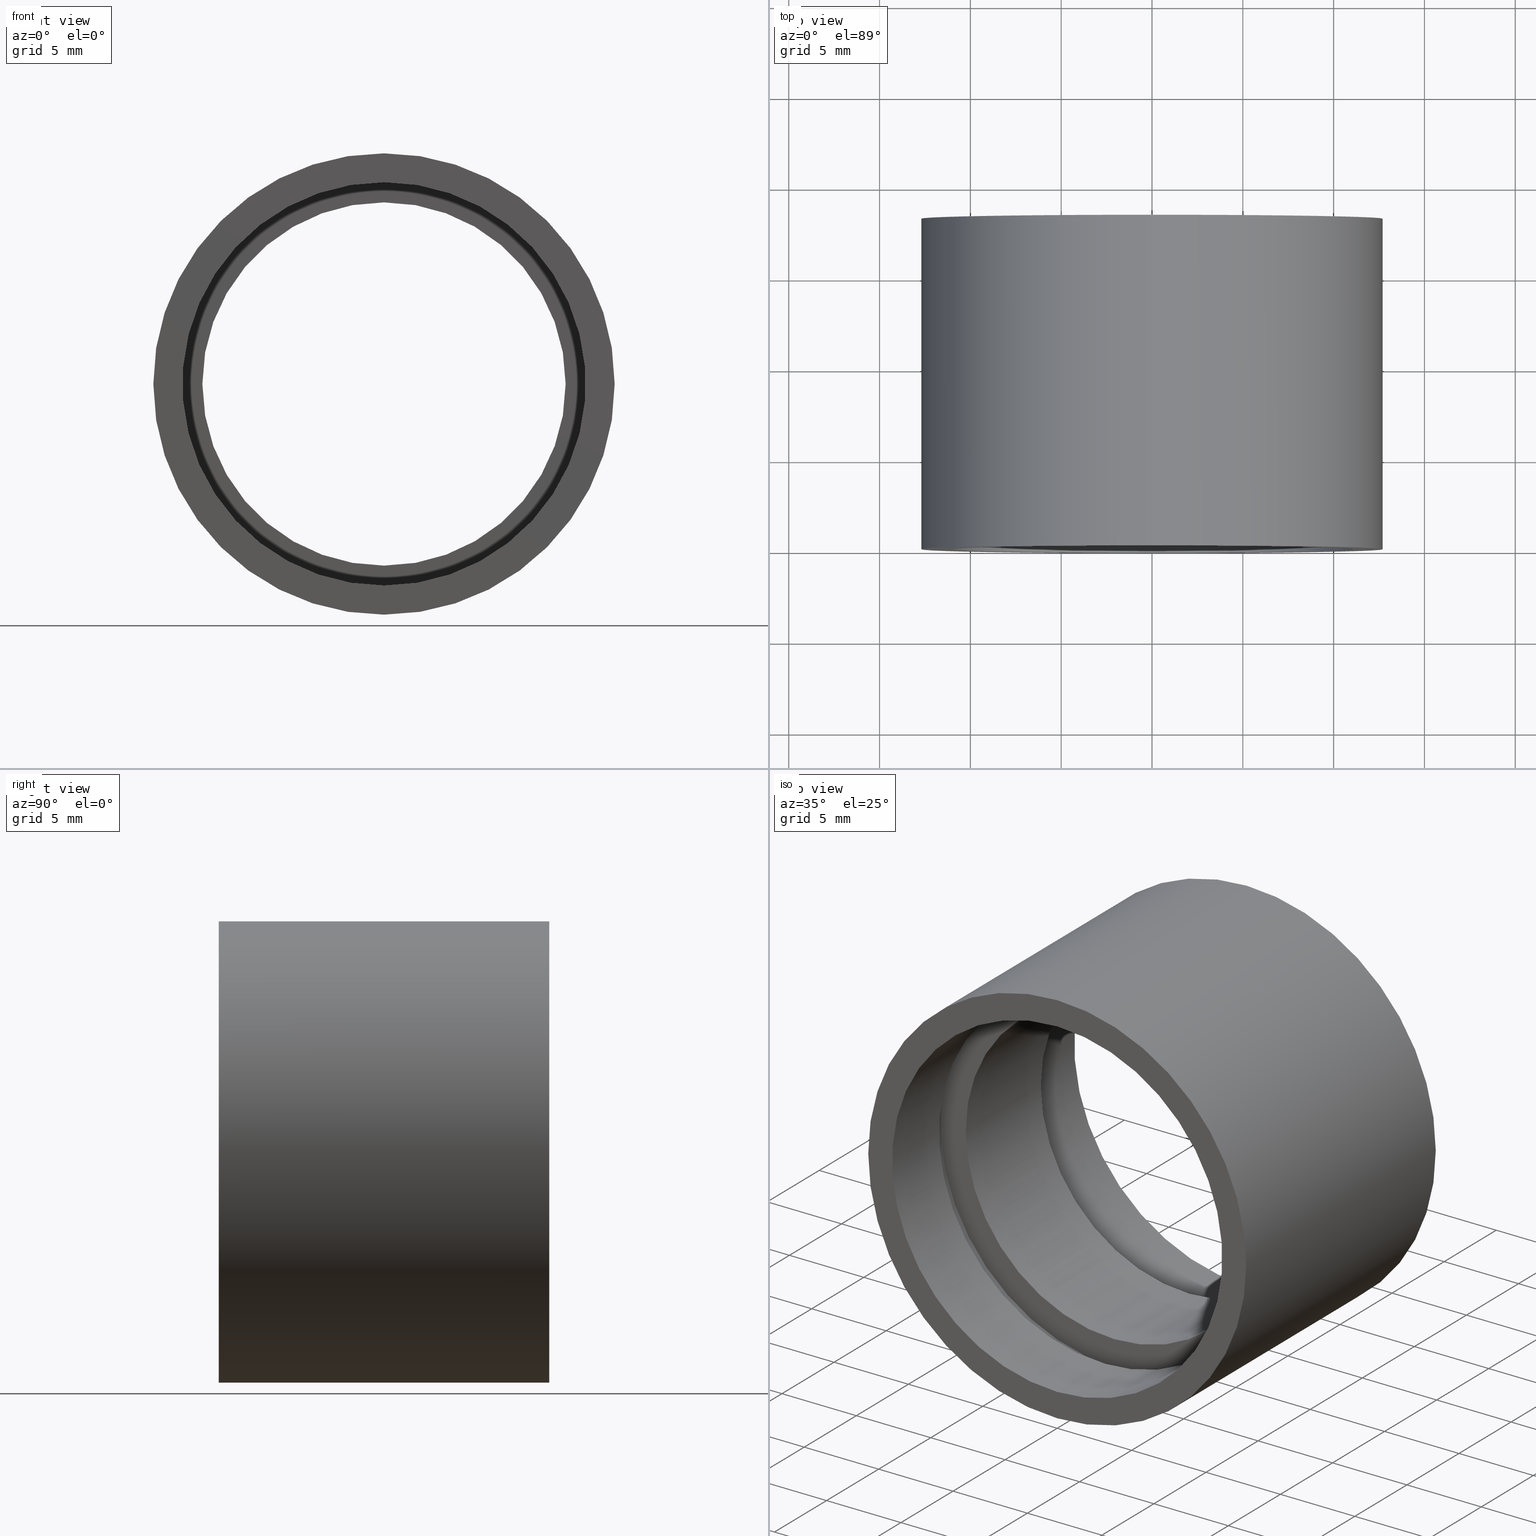
[diagram: canonical four-view strip — front | top / right | iso, engineering-drawing reading convention]
A machine part, canonical four-view strip (front | top / right | iso — engineering-drawing reading convention). The complete STEP part file that produces these views, byte-faithful:
ISO-10303-21;
HEADER;
FILE_DESCRIPTION (( 'STEP AP214' ),
    '1' );
FILE_NAME ('503065.STEP',
    '2019-09-09T06:13:58',
    ( '' ),
    ( '' ),
    'SwSTEP 2.0',
    'SolidWorks 2016',
    '' );
FILE_SCHEMA (( 'AUTOMOTIVE_DESIGN' ));
ENDSEC;

DATA;
#1 = SURFACE_SIDE_STYLE ('',( #604 ) ) ;
#2 = DIRECTION ( 'NONE',  ( -0.0000000000000000000, 1.000000000000000000, -0.0000000000000000000 ) ) ;
#3 = VERTEX_POINT ( 'NONE', #596 ) ;
#4 = MECHANICAL_DESIGN_GEOMETRIC_PRESENTATION_REPRESENTATION (  '', ( #213 ), #61 ) ;
#5 = DIRECTION ( 'NONE',  ( 0.0000000000000000000, 0.0000000000000000000, 1.000000000000000000 ) ) ;
#6 = AXIS2_PLACEMENT_3D ( 'NONE', #29, #513, #231 ) ;
#7 = LINE ( 'NONE', #534, #113 ) ;
#8 = CARTESIAN_POINT ( 'NONE',  ( 0.0000000000000000000, 5.499999999999976900, 11.70000000000001700 ) ) ;
#9 = VERTEX_POINT ( 'NONE', #507 ) ;
#10 = ORIENTED_EDGE ( 'NONE', *, *, #389, .T. ) ;
#11 = DIRECTION ( 'NONE',  ( 0.0000000000000000000, 0.0000000000000000000, 1.000000000000000000 ) ) ;
#12 = CARTESIAN_POINT ( 'NONE',  ( 11.10000000000001900, 4.499999999999983100, 0.0000000000000000000 ) ) ;
#13 = CYLINDRICAL_SURFACE ( 'NONE', #104, 10.00000000000002000 ) ;
#14 = CIRCLE ( 'NONE', #406, 12.70000000000001900 ) ;
#15 = CARTESIAN_POINT ( 'NONE',  ( 0.0000000000000000000, 161.3761669434274500, 0.0000000000000000000 ) ) ;
#16 = COLOUR_RGB ( '',1.000000000000000000, 1.000000000000000000, 1.000000000000000000 ) ;
#17 = AXIS2_PLACEMENT_3D ( 'NONE', #325, #565, #183 ) ;
#18 = CARTESIAN_POINT ( 'NONE',  ( 0.0000000000000000000, 18.19999999999999600, 0.0000000000000000000 ) ) ;
#19 = VERTEX_POINT ( 'NONE', #315 ) ;
#20 = EDGE_CURVE ( 'NONE', #210, #568, #265, .T. ) ;
#21 = CYLINDRICAL_SURFACE ( 'NONE', #326, 11.10000000000002100 ) ;
#22 = SURFACE_STYLE_FILL_AREA ( #530 ) ;
#23 = FILL_AREA_STYLE_COLOUR ( '', #580 ) ;
#24 = VERTEX_POINT ( 'NONE', #361 ) ;
#25 = VERTEX_POINT ( 'NONE', #307 ) ;
#26 = DIRECTION ( 'NONE',  ( -0.0000000000000000000, 1.000000000000000000, -0.0000000000000000000 ) ) ;
#27 = AXIS2_PLACEMENT_3D ( 'NONE', #432, #246, #330 ) ;
#28 = PRESENTATION_STYLE_ASSIGNMENT (( #342 ) ) ;
#29 = CARTESIAN_POINT ( 'NONE',  ( 0.0000000000000000000, -2.775557561562891400E-014, 0.0000000000000000000 ) ) ;
#30 =( NAMED_UNIT ( * ) PLANE_ANGLE_UNIT ( ) SI_UNIT ( $, .RADIAN. ) );
#31 = EDGE_LOOP ( 'NONE', ( #462, #365, #598, #37 ) ) ;
#32 = FILL_AREA_STYLE ('',( #23 ) ) ;
#33 =( NAMED_UNIT ( * ) SI_UNIT ( $, .STERADIAN. ) SOLID_ANGLE_UNIT ( ) );
#34 = PRESENTATION_LAYER_ASSIGNMENT (  '', '', ( #213 ) ) ;
#35 = DIRECTION ( 'NONE',  ( -0.0000000000000000000, 1.000000000000000000, -0.0000000000000000000 ) ) ;
#36 = EDGE_CURVE ( 'NONE', #210, #19, #448, .T. ) ;
#37 = ORIENTED_EDGE ( 'NONE', *, *, #440, .T. ) ;
#38 = DIRECTION ( 'NONE',  ( 0.0000000000000000000, 0.0000000000000000000, 1.000000000000000000 ) ) ;
#39 = DIRECTION ( 'NONE',  ( -0.0000000000000000000, 1.000000000000000000, -0.0000000000000000000 ) ) ;
#40 = ORIENTED_EDGE ( 'NONE', *, *, #228, .F. ) ;
#41 = EDGE_CURVE ( 'NONE', #24, #328, #303, .T. ) ;
#42 = CARTESIAN_POINT ( 'NONE',  ( 0.0000000000000000000, 4.499999999999976000, 0.0000000000000000000 ) ) ;
#43 = CIRCLE ( 'NONE', #248, 10.00000000000002000 ) ;
#44 = ORIENTED_EDGE ( 'NONE', *, *, #124, .T. ) ;
#45 = EDGE_CURVE ( 'NONE', #25, #591, #382, .T. ) ;
#46 = FACE_OUTER_BOUND ( 'NONE', #111, .T. ) ;
#47 = FACE_BOUND ( 'NONE', #64, .T. ) ;
#48 = CARTESIAN_POINT ( 'NONE',  ( 0.0000000000000000000, 161.3761669434274500, 0.0000000000000000000 ) ) ;
#49 = ORIENTED_EDGE ( 'NONE', *, *, #207, .T. ) ;
#50 = VERTEX_POINT ( 'NONE', #125 ) ;
#51 = ORIENTED_EDGE ( 'NONE', *, *, #20, .F. ) ;
#52 = PRODUCT_DEFINITION_FORMATION_WITH_SPECIFIED_SOURCE ( '�κ�', '', #525, .NOT_KNOWN. ) ;
#53 = FILL_AREA_STYLE_COLOUR ( '', #333 ) ;
#54 = SURFACE_STYLE_FILL_AREA ( #273 ) ;
#55 = EDGE_LOOP ( 'NONE', ( #453, #357, #123, #153 ) ) ;
#56 = DIRECTION ( 'NONE',  ( -0.0000000000000000000, 1.000000000000000000, -0.0000000000000000000 ) ) ;
#57 = EDGE_CURVE ( 'NONE', #486, #3, #434, .T. ) ;
#58 = FILL_AREA_STYLE_COLOUR ( '', #430 ) ;
#59 = PRESENTATION_STYLE_ASSIGNMENT (( #161 ) ) ;
#60 = DIRECTION ( 'NONE',  ( -0.0000000000000000000, 1.000000000000000000, -0.0000000000000000000 ) ) ;
#61 =( GEOMETRIC_REPRESENTATION_CONTEXT ( 3 ) GLOBAL_UNCERTAINTY_ASSIGNED_CONTEXT ( ( #412 ) ) GLOBAL_UNIT_ASSIGNED_CONTEXT ( ( #262, #514, #229 ) ) REPRESENTATION_CONTEXT ( 'NONE', 'WORKASPACE' ) );
#62 = CARTESIAN_POINT ( 'NONE',  ( 0.0000000000000000000, 4.499999999999976000, 0.0000000000000000000 ) ) ;
#63 = VERTEX_POINT ( 'NONE', #458 ) ;
#64 = EDGE_LOOP ( 'NONE', ( #425, #344 ) ) ;
#65 = ORIENTED_EDGE ( 'NONE', *, *, #364, .F. ) ;
#66 = MECHANICAL_DESIGN_GEOMETRIC_PRESENTATION_REPRESENTATION (  '', ( #581 ), #460 ) ;
#67 = DIRECTION ( 'NONE',  ( 0.0000000000000000000, 0.0000000000000000000, 1.000000000000000000 ) ) ;
#68 = EDGE_CURVE ( 'NONE', #186, #50, #411, .T. ) ;
#69 = SURFACE_STYLE_FILL_AREA ( #309 ) ;
#70 = FACE_BOUND ( 'NONE', #130, .T. ) ;
#71 = ORIENTED_EDGE ( 'NONE', *, *, #601, .T. ) ;
#72 = DIRECTION ( 'NONE',  ( 0.0000000000000000000, -1.000000000000000000, 0.0000000000000000000 ) ) ;
#73 = DIRECTION ( 'NONE',  ( 0.0000000000000000000, -0.0000000000000000000, -1.000000000000000000 ) ) ;
#74 = PRESENTATION_LAYER_ASSIGNMENT (  '', '', ( #551 ) ) ;
#75 = DIRECTION ( 'NONE',  ( 0.0000000000000000000, 0.0000000000000000000, 1.000000000000000000 ) ) ;
#76 = EDGE_CURVE ( 'NONE', #250, #204, #540, .T. ) ;
#77 = CARTESIAN_POINT ( 'NONE',  ( 0.0000000000000000000, 161.3761669434274500, 11.60000000000003300 ) ) ;
#78 = SURFACE_STYLE_FILL_AREA ( #613 ) ;
#79 = CARTESIAN_POINT ( 'NONE',  ( 0.0000000000000000000, 161.3761669434274500, 0.0000000000000000000 ) ) ;
#80 = ADVANCED_FACE ( 'NONE', ( #160, #556 ), #617, .F. ) ;
#81 = AXIS2_PLACEMENT_3D ( 'NONE', #522, #619, #288 ) ;
#82 = DIRECTION ( 'NONE',  ( 0.0000000000000000000, 0.0000000000000000000, 1.000000000000000000 ) ) ;
#83 = ORIENTED_EDGE ( 'NONE', *, *, #264, .T. ) ;
#84 = ORIENTED_EDGE ( 'NONE', *, *, #484, .F. ) ;
#85 = EDGE_LOOP ( 'NONE', ( #189, #380, #470, #585 ) ) ;
#86 = DIRECTION ( 'NONE',  ( -0.0000000000000000000, 1.000000000000000000, -0.0000000000000000000 ) ) ;
#87 = ADVANCED_FACE ( 'NONE', ( #216 ), #498, .F. ) ;
#88 = CARTESIAN_POINT ( 'NONE',  ( 0.0000000000000000000, 18.19999999999996700, 12.70000000000001900 ) ) ;
#89 = CARTESIAN_POINT ( 'NONE',  ( 11.10000000000002300, -1.590039098016662300E-014, 0.0000000000000000000 ) ) ;
#90 = UNCERTAINTY_MEASURE_WITH_UNIT (LENGTH_MEASURE( 1.000000000000000100E-005 ), #600, 'distance_accuracy_value', 'NONE');
#91 = ADVANCED_FACE ( 'NONE', ( #527, #47 ), #173, .F. ) ;
#92 = CYLINDRICAL_SURFACE ( 'NONE', #570, 11.60000000000003300 ) ;
#93 = CARTESIAN_POINT ( 'NONE',  ( 1.432836755002405500E-015, 13.69999999999999000, -11.70000000000001700 ) ) ;
#94 = STYLED_ITEM ( 'NONE', ( #594 ), #269 ) ;
#95 = DIRECTION ( 'NONE',  ( -0.0000000000000000000, 1.000000000000000000, -0.0000000000000000000 ) ) ;
#96 = ORIENTED_EDGE ( 'NONE', *, *, #402, .F. ) ;
#97 = PRODUCT_DEFINITION_SHAPE ( 'NONE', 'NONE',  #122 ) ;
#98 = FILL_AREA_STYLE_COLOUR ( '', #539 ) ;
#99 = MECHANICAL_DESIGN_GEOMETRIC_PRESENTATION_REPRESENTATION (  '', ( #290 ), #206 ) ;
#100 = DIRECTION ( 'NONE',  ( -0.0000000000000000000, 1.000000000000000000, -0.0000000000000000000 ) ) ;
#101 = FACE_OUTER_BOUND ( 'NONE', #31, .T. ) ;
#102 = CARTESIAN_POINT ( 'NONE',  ( 0.0000000000000000000, -2.775557561562891400E-014, 0.0000000000000000000 ) ) ;
#103 = VERTEX_POINT ( 'NONE', #129 ) ;
#104 = AXIS2_PLACEMENT_3D ( 'NONE', #187, #420, #38 ) ;
#105 =( NAMED_UNIT ( * ) PLANE_ANGLE_UNIT ( ) SI_UNIT ( $, .RADIAN. ) );
#106 = AXIS2_PLACEMENT_3D ( 'NONE', #606, #227, #318 ) ;
#107 = CIRCLE ( 'NONE', #587, 11.10000000000001900 ) ;
#108 = SURFACE_SIDE_STYLE ('',( #194 ) ) ;
#109 = FACE_OUTER_BOUND ( 'NONE', #85, .T. ) ;
#110 = DIRECTION ( 'NONE',  ( 0.0000000000000000000, 0.0000000000000000000, 1.000000000000000000 ) ) ;
#111 = EDGE_LOOP ( 'NONE', ( #521, #168, #49, #614 ) ) ;
#112 = UNCERTAINTY_MEASURE_WITH_UNIT (LENGTH_MEASURE( 1.000000000000000100E-005 ), #388, 'distance_accuracy_value', 'NONE');
#113 = VECTOR ( 'NONE', #2, 1000.000000000000000 ) ;
#114 = VECTOR ( 'NONE', #427, 1000.000000000000000 ) ;
#115 = EDGE_CURVE ( 'NONE', #9, #471, #200, .T. ) ;
#116 =( NAMED_UNIT ( * ) PLANE_ANGLE_UNIT ( ) SI_UNIT ( $, .RADIAN. ) );
#117 = ORIENTED_EDGE ( 'NONE', *, *, #41, .F. ) ;
#118 =( LENGTH_UNIT ( ) NAMED_UNIT ( * ) SI_UNIT ( .MILLI., .METRE. ) );
#119 = ORIENTED_EDGE ( 'NONE', *, *, #331, .T. ) ;
#120 = EDGE_CURVE ( 'NONE', #204, #250, #564, .T. ) ;
#121 = CARTESIAN_POINT ( 'NONE',  ( 0.0000000000000000000, 161.3761669434274500, 0.0000000000000000000 ) ) ;
#122 = PRODUCT_DEFINITION ( 'δ֪', '', #52, #208 ) ;
#123 = ORIENTED_EDGE ( 'NONE', *, *, #524, .T. ) ;
#124 = EDGE_CURVE ( 'NONE', #63, #281, #302, .T. ) ;
#125 = CARTESIAN_POINT ( 'NONE',  ( 1.224646799147355400E-015, 12.69999999999996200, -10.00000000000002000 ) ) ;
#126 = AXIS2_PLACEMENT_3D ( 'NONE', #492, #298, #11 ) ;
#127 = CIRCLE ( 'NONE', #138, 11.70000000000001700 ) ;
#128 = APPLICATION_PROTOCOL_DEFINITION ( 'draft international standard', 'automotive_design', 1998, #616 ) ;
#129 = CARTESIAN_POINT ( 'NONE',  ( 1.432836755002405500E-015, 4.499999999999976000, -11.70000000000001700 ) ) ;
#130 = EDGE_LOOP ( 'NONE', ( #553, #327 ) ) ;
#131 = DIRECTION ( 'NONE',  ( 0.0000000000000000000, 0.0000000000000000000, 1.000000000000000000 ) ) ;
#132 = ADVANCED_FACE ( 'NONE', ( #101 ), #409, .F. ) ;
#133 =( NAMED_UNIT ( * ) SI_UNIT ( $, .STERADIAN. ) SOLID_ANGLE_UNIT ( ) );
#134 = MECHANICAL_DESIGN_GEOMETRIC_PRESENTATION_REPRESENTATION (  '', ( #348 ), #399 ) ;
#135 = CARTESIAN_POINT ( 'NONE',  ( 0.0000000000000000000, 12.69999999999996200, 0.0000000000000000000 ) ) ;
#136 = DIRECTION ( 'NONE',  ( 0.0000000000000000000, 0.0000000000000000000, 1.000000000000000000 ) ) ;
#137 = PRESENTATION_STYLE_ASSIGNMENT (( #209 ) ) ;
#138 = AXIS2_PLACEMENT_3D ( 'NONE', #42, #433, #475 ) ;
#139 = APPLICATION_CONTEXT ( 'automotive_design' ) ;
#140 = EDGE_CURVE ( 'NONE', #141, #345, #247, .T. ) ;
#141 = VERTEX_POINT ( 'NONE', #238 ) ;
#142 = ORIENTED_EDGE ( 'NONE', *, *, #171, .T. ) ;
#143 = CARTESIAN_POINT ( 'NONE',  ( 0.0000000000000000000, 161.3761669434274500, 11.70000000000001700 ) ) ;
#144 = CYLINDRICAL_SURFACE ( 'NONE', #81, 11.70000000000001700 ) ;
#145 = CARTESIAN_POINT ( 'NONE',  ( 0.0000000000000000000, 161.3761669434274500, 0.0000000000000000000 ) ) ;
#146 = AXIS2_PLACEMENT_3D ( 'NONE', #18, #164, #212 ) ;
#147 = DIRECTION ( 'NONE',  ( -0.0000000000000000000, 1.000000000000000000, -0.0000000000000000000 ) ) ;
#148 = EDGE_LOOP ( 'NONE', ( #44, #569 ) ) ;
#149 = EDGE_CURVE ( 'NONE', #591, #25, #438, .T. ) ;
#150 = AXIS2_PLACEMENT_3D ( 'NONE', #283, #240, #429 ) ;
#151 =( LENGTH_UNIT ( ) NAMED_UNIT ( * ) SI_UNIT ( .MILLI., .METRE. ) );
#152 = FILL_AREA_STYLE_COLOUR ( '', #461 ) ;
#153 = ORIENTED_EDGE ( 'NONE', *, *, #276, .F. ) ;
#154 = CARTESIAN_POINT ( 'NONE',  ( 0.0000000000000000000, 161.3761669434274500, 10.00000000000002000 ) ) ;
#155 = CARTESIAN_POINT ( 'NONE',  ( 1.432836755002405500E-015, 12.69999999999996200, -11.70000000000001700 ) ) ;
#156 =( GEOMETRIC_REPRESENTATION_CONTEXT ( 3 ) GLOBAL_UNCERTAINTY_ASSIGNED_CONTEXT ( ( #112 ) ) GLOBAL_UNIT_ASSIGNED_CONTEXT ( ( #388, #280, #335 ) ) REPRESENTATION_CONTEXT ( 'NONE', 'WORKASPACE' ) );
#157 = EDGE_CURVE ( 'NONE', #324, #103, #286, .T. ) ;
#158 = FACE_OUTER_BOUND ( 'NONE', #221, .T. ) ;
#159 = DIRECTION ( 'NONE',  ( 0.0000000000000000000, 0.0000000000000000000, 1.000000000000000000 ) ) ;
#160 = FACE_BOUND ( 'NONE', #403, .T. ) ;
#161 = SURFACE_STYLE_USAGE ( .BOTH. , #454 ) ;
#162 = AXIS2_PLACEMENT_3D ( 'NONE', #379, #147, #572 ) ;
#163 = ORIENTED_EDGE ( 'NONE', *, *, #389, .F. ) ;
#164 = DIRECTION ( 'NONE',  ( -0.0000000000000000000, 1.000000000000000000, -0.0000000000000000000 ) ) ;
#165 = DIRECTION ( 'NONE',  ( 0.0000000000000000000, 0.0000000000000000000, 1.000000000000000000 ) ) ;
#166 = AXIS2_PLACEMENT_3D ( 'NONE', #358, #501, #497 ) ;
#167 = ORIENTED_EDGE ( 'NONE', *, *, #68, .F. ) ;
#168 = ORIENTED_EDGE ( 'NONE', *, *, #124, .F. ) ;
#169 = ORIENTED_EDGE ( 'NONE', *, *, #41, .T. ) ;
#170 = MECHANICAL_DESIGN_GEOMETRIC_PRESENTATION_REPRESENTATION (  '', ( #94 ), #156 ) ;
#171 = EDGE_CURVE ( 'NONE', #103, #141, #396, .T. ) ;
#172 = UNCERTAINTY_MEASURE_WITH_UNIT (LENGTH_MEASURE( 1.000000000000000100E-005 ), #320, 'distance_accuracy_value', 'NONE');
#173 = PLANE ( 'NONE',  #451 ) ;
#174 = ORIENTED_EDGE ( 'NONE', *, *, #276, .T. ) ;
#175 =( LENGTH_UNIT ( ) NAMED_UNIT ( * ) SI_UNIT ( .MILLI., .METRE. ) );
#176 =( GEOMETRIC_REPRESENTATION_CONTEXT ( 3 ) GLOBAL_UNCERTAINTY_ASSIGNED_CONTEXT ( ( #623 ) ) GLOBAL_UNIT_ASSIGNED_CONTEXT ( ( #541, #258, #593 ) ) REPRESENTATION_CONTEXT ( 'NONE', 'WORKASPACE' ) );
#177 = DIRECTION ( 'NONE',  ( 0.0000000000000000000, 0.0000000000000000000, 1.000000000000000000 ) ) ;
#178 = ADVANCED_FACE ( 'NONE', ( #243 ), #144, .F. ) ;
#179 = DIRECTION ( 'NONE',  ( -0.0000000000000000000, 1.000000000000000000, -0.0000000000000000000 ) ) ;
#180 = LINE ( 'NONE', #447, #192 ) ;
#181 = PRESENTATION_LAYER_ASSIGNMENT (  '', '', ( #290 ) ) ;
#182 = PRESENTATION_STYLE_ASSIGNMENT (( #277 ) ) ;
#183 = DIRECTION ( 'NONE',  ( 0.0000000000000000000, 0.0000000000000000000, 1.000000000000000000 ) ) ;
#184 = SHAPE_DEFINITION_REPRESENTATION ( #97, #603 ) ;
#185 = ADVANCED_FACE ( 'NONE', ( #512 ), #387, .T. ) ;
#186 = VERTEX_POINT ( 'NONE', #480 ) ;
#187 = CARTESIAN_POINT ( 'NONE',  ( 0.0000000000000000000, 161.3761669434274500, 0.0000000000000000000 ) ) ;
#188 = CARTESIAN_POINT ( 'NONE',  ( 11.60000000000003300, 13.69999999999998000, 0.0000000000000000000 ) ) ;
#189 = ORIENTED_EDGE ( 'NONE', *, *, #149, .F. ) ;
#190 = EDGE_LOOP ( 'NONE', ( #313, #236 ) ) ;
#191 = AXIS2_PLACEMENT_3D ( 'NONE', #443, #255, #291 ) ;
#192 = VECTOR ( 'NONE', #354, 1000.000000000000000 ) ;
#193 = DIRECTION ( 'NONE',  ( -0.0000000000000000000, 1.000000000000000000, -0.0000000000000000000 ) ) ;
#194 = SURFACE_STYLE_FILL_AREA ( #300 ) ;
#195 = FACE_OUTER_BOUND ( 'NONE', #390, .T. ) ;
#196 = EDGE_CURVE ( 'NONE', #103, #324, #127, .T. ) ;
#197 = ORIENTED_EDGE ( 'NONE', *, *, #319, .T. ) ;
#198 = EDGE_CURVE ( 'NONE', #324, #345, #308, .T. ) ;
#199 = DIRECTION ( 'NONE',  ( -0.0000000000000000000, 1.000000000000000000, -0.0000000000000000000 ) ) ;
#200 = CIRCLE ( 'NONE', #493, 10.00000000000002000 ) ;
#201 = DIRECTION ( 'NONE',  ( -0.0000000000000000000, 1.000000000000000000, -0.0000000000000000000 ) ) ;
#202 = PRODUCT_RELATED_PRODUCT_CATEGORY ( 'part', '', ( #525 ) ) ;
#203 =( LENGTH_UNIT ( ) NAMED_UNIT ( * ) SI_UNIT ( .MILLI., .METRE. ) );
#204 = VERTEX_POINT ( 'NONE', #93 ) ;
#205 = ORIENTED_EDGE ( 'NONE', *, *, #400, .T. ) ;
#206 =( GEOMETRIC_REPRESENTATION_CONTEXT ( 3 ) GLOBAL_UNCERTAINTY_ASSIGNED_CONTEXT ( ( #268 ) ) GLOBAL_UNIT_ASSIGNED_CONTEXT ( ( #203, #105, #437 ) ) REPRESENTATION_CONTEXT ( 'NONE', 'WORKASPACE' ) );
#207 = EDGE_CURVE ( 'NONE', #63, #250, #257, .T. ) ;
#208 = PRODUCT_DEFINITION_CONTEXT ( 'detailed design', #616, 'design' ) ;
#209 = SURFACE_STYLE_USAGE ( .BOTH. , #450 ) ;
#210 = VERTEX_POINT ( 'NONE', #383 ) ;
#211 = DIRECTION ( 'NONE',  ( 0.0000000000000000000, -0.0000000000000000000, -1.000000000000000000 ) ) ;
#212 = DIRECTION ( 'NONE',  ( 0.0000000000000000000, 0.0000000000000000000, 1.000000000000000000 ) ) ;
#213 = STYLED_ITEM ( 'NONE', ( #418 ), #615 ) ;
#214 = FACE_BOUND ( 'NONE', #393, .T. ) ;
#215 = DIRECTION ( 'NONE',  ( -0.0000000000000000000, 1.000000000000000000, -0.0000000000000000000 ) ) ;
#216 = FACE_OUTER_BOUND ( 'NONE', #535, .T. ) ;
#217 = CARTESIAN_POINT ( 'NONE',  ( 0.0000000000000000000, 161.3761669434274500, 0.0000000000000000000 ) ) ;
#218 = EDGE_CURVE ( 'NONE', #529, #577, #349, .T. ) ;
#219 = ORIENTED_EDGE ( 'NONE', *, *, #363, .F. ) ;
#220 = ORIENTED_EDGE ( 'NONE', *, *, #198, .F. ) ;
#221 = EDGE_LOOP ( 'NONE', ( #495, #397, #506, #163 ) ) ;
#222 =( NAMED_UNIT ( * ) SI_UNIT ( $, .STERADIAN. ) SOLID_ANGLE_UNIT ( ) );
#223 =( GEOMETRIC_REPRESENTATION_CONTEXT ( 3 ) GLOBAL_UNCERTAINTY_ASSIGNED_CONTEXT ( ( #293 ) ) GLOBAL_UNIT_ASSIGNED_CONTEXT ( ( #175, #239, #133 ) ) REPRESENTATION_CONTEXT ( 'NONE', 'WORKASPACE' ) );
#224 = FACE_OUTER_BOUND ( 'NONE', #442, .T. ) ;
#225 = ORIENTED_EDGE ( 'NONE', *, *, #140, .F. ) ;
#226 = PRESENTATION_LAYER_ASSIGNMENT (  '', '', ( #94 ) ) ;
#227 = DIRECTION ( 'NONE',  ( -0.0000000000000000000, 1.000000000000000000, -0.0000000000000000000 ) ) ;
#228 = EDGE_CURVE ( 'NONE', #591, #328, #355, .T. ) ;
#229 =( NAMED_UNIT ( * ) SI_UNIT ( $, .STERADIAN. ) SOLID_ANGLE_UNIT ( ) );
#230 = VECTOR ( 'NONE', #260, 1000.000000000000000 ) ;
#231 = DIRECTION ( 'NONE',  ( 0.0000000000000000000, 0.0000000000000000000, 1.000000000000000000 ) ) ;
#232 = ADVANCED_FACE ( 'NONE', ( #195, #431 ), #385, .F. ) ;
#233 = COLOUR_RGB ( '',1.000000000000000000, 1.000000000000000000, 1.000000000000000000 ) ;
#234 = CARTESIAN_POINT ( 'NONE',  ( 0.0000000000000000000, 161.3761669434274500, 0.0000000000000000000 ) ) ;
#235 = DIRECTION ( 'NONE',  ( -0.0000000000000000000, 1.000000000000000000, -0.0000000000000000000 ) ) ;
#236 = ORIENTED_EDGE ( 'NONE', *, *, #196, .T. ) ;
#237 = PRESENTATION_LAYER_ASSIGNMENT (  '', '', ( #562 ) ) ;
#238 = CARTESIAN_POINT ( 'NONE',  ( 1.432836755002405500E-015, 5.499999999999976900, -11.70000000000001700 ) ) ;
#239 =( NAMED_UNIT ( * ) PLANE_ANGLE_UNIT ( ) SI_UNIT ( $, .RADIAN. ) );
#240 = DIRECTION ( 'NONE',  ( -0.0000000000000000000, 1.000000000000000000, -0.0000000000000000000 ) ) ;
#241 = AXIS2_PLACEMENT_3D ( 'NONE', #599, #26, #405 ) ;
#242 = FACE_OUTER_BOUND ( 'NONE', #311, .T. ) ;
#243 = FACE_OUTER_BOUND ( 'NONE', #343, .T. ) ;
#244 = VECTOR ( 'NONE', #407, 1000.000000000000000 ) ;
#245 = DIRECTION ( 'NONE',  ( -0.0000000000000000000, 1.000000000000000000, 0.0000000000000000000 ) ) ;
#246 = DIRECTION ( 'NONE',  ( -0.0000000000000000000, 1.000000000000000000, -0.0000000000000000000 ) ) ;
#247 = CIRCLE ( 'NONE', #611, 11.70000000000001700 ) ;
#248 = AXIS2_PLACEMENT_3D ( 'NONE', #489, #251, #110 ) ;
#249 = CARTESIAN_POINT ( 'NONE',  ( 0.0000000000000000000, 4.499999999999976000, 11.70000000000001700 ) ) ;
#250 = VERTEX_POINT ( 'NONE', #575 ) ;
#251 = DIRECTION ( 'NONE',  ( -0.0000000000000000000, 1.000000000000000000, -0.0000000000000000000 ) ) ;
#252 = DIRECTION ( 'NONE',  ( -0.0000000000000000000, 1.000000000000000000, -0.0000000000000000000 ) ) ;
#253 = UNCERTAINTY_MEASURE_WITH_UNIT (LENGTH_MEASURE( 1.000000000000000100E-005 ), #118, 'distance_accuracy_value', 'NONE');
#254 = LINE ( 'NONE', #77, #445 ) ;
#255 = DIRECTION ( 'NONE',  ( -0.0000000000000000000, 1.000000000000000000, -0.0000000000000000000 ) ) ;
#256 = AXIS2_PLACEMENT_3D ( 'NONE', #12, #351, #211 ) ;
#257 = LINE ( 'NONE', #526, #114 ) ;
#258 =( NAMED_UNIT ( * ) PLANE_ANGLE_UNIT ( ) SI_UNIT ( $, .RADIAN. ) );
#259 = PRESENTATION_LAYER_ASSIGNMENT (  '', '', ( #581 ) ) ;
#260 = DIRECTION ( 'NONE',  ( -0.0000000000000000000, 1.000000000000000000, -0.0000000000000000000 ) ) ;
#261 = AXIS2_PLACEMENT_3D ( 'NONE', #301, #398, #165 ) ;
#262 =( LENGTH_UNIT ( ) NAMED_UNIT ( * ) SI_UNIT ( .MILLI., .METRE. ) );
#263 = SURFACE_STYLE_FILL_AREA ( #543 ) ;
#264 = EDGE_CURVE ( 'NONE', #486, #577, #482, .T. ) ;
#265 = LINE ( 'NONE', #266, #244 ) ;
#266 = CARTESIAN_POINT ( 'NONE',  ( 1.359357947053564500E-015, 161.3761669434274500, -11.10000000000002100 ) ) ;
#267 = ORIENTED_EDGE ( 'NONE', *, *, #319, .F. ) ;
#268 = UNCERTAINTY_MEASURE_WITH_UNIT (LENGTH_MEASURE( 1.000000000000000100E-005 ), #203, 'distance_accuracy_value', 'NONE');
#269 = ADVANCED_FACE ( 'NONE', ( #109 ), #92, .F. ) ;
#270 = SURFACE_SIDE_STYLE ('',( #54 ) ) ;
#271 = EDGE_LOOP ( 'NONE', ( #51, #552, #10, #441 ) ) ;
#272 = CARTESIAN_POINT ( 'NONE',  ( 1.420590287010933900E-015, 13.69999999999999000, -11.60000000000003300 ) ) ;
#273 = FILL_AREA_STYLE ('',( #369 ) ) ;
#274 = DIRECTION ( 'NONE',  ( 0.0000000000000000000, -1.000000000000000000, 0.0000000000000000000 ) ) ;
#275 = DIRECTION ( 'NONE',  ( -0.0000000000000000000, 1.000000000000000000, -0.0000000000000000000 ) ) ;
#276 = EDGE_CURVE ( 'NONE', #9, #186, #446, .T. ) ;
#277 = SURFACE_STYLE_USAGE ( .BOTH. , #270 ) ;
#278 = CYLINDRICAL_SURFACE ( 'NONE', #191, 11.70000000000001700 ) ;
#279 = ADVANCED_FACE ( 'NONE', ( #386 ), #518, .F. ) ;
#280 =( NAMED_UNIT ( * ) PLANE_ANGLE_UNIT ( ) SI_UNIT ( $, .RADIAN. ) );
#281 = VERTEX_POINT ( 'NONE', #155 ) ;
#282 = ORIENTED_EDGE ( 'NONE', *, *, #440, .F. ) ;
#283 = CARTESIAN_POINT ( 'NONE',  ( 0.0000000000000000000, 161.3761669434274500, 0.0000000000000000000 ) ) ;
#284 = LINE ( 'NONE', #548, #230 ) ;
#285 = STYLED_ITEM ( 'NONE', ( #367 ), #603 ) ;
#286 = CIRCLE ( 'NONE', #503, 11.70000000000001700 ) ;
#287 = CARTESIAN_POINT ( 'NONE',  ( 0.0000000000000000000, 161.3761669434274500, 12.70000000000001900 ) ) ;
#288 = DIRECTION ( 'NONE',  ( 0.0000000000000000000, 0.0000000000000000000, 1.000000000000000000 ) ) ;
#289 = ORIENTED_EDGE ( 'NONE', *, *, #36, .T. ) ;
#290 = STYLED_ITEM ( 'NONE', ( #555 ), #279 ) ;
#291 = DIRECTION ( 'NONE',  ( 0.0000000000000000000, 0.0000000000000000000, 1.000000000000000000 ) ) ;
#292 = DIRECTION ( 'NONE',  ( 0.0000000000000000000, 0.0000000000000000000, 1.000000000000000000 ) ) ;
#293 = UNCERTAINTY_MEASURE_WITH_UNIT (LENGTH_MEASURE( 1.000000000000000100E-005 ), #175, 'distance_accuracy_value', 'NONE');
#294 = MECHANICAL_DESIGN_GEOMETRIC_PRESENTATION_REPRESENTATION (  '', ( #562 ), #176 ) ;
#295 = DIRECTION ( 'NONE',  ( -0.0000000000000000000, 1.000000000000000000, -0.0000000000000000000 ) ) ;
#296 = ORIENTED_EDGE ( 'NONE', *, *, #524, .F. ) ;
#297 = ORIENTED_EDGE ( 'NONE', *, *, #57, .T. ) ;
#298 = DIRECTION ( 'NONE',  ( -0.0000000000000000000, 1.000000000000000000, -0.0000000000000000000 ) ) ;
#299 = AXIS2_PLACEMENT_3D ( 'NONE', #422, #235, #473 ) ;
#300 = FILL_AREA_STYLE ('',( #98 ) ) ;
#301 = CARTESIAN_POINT ( 'NONE',  ( 11.70000000000001700, 5.499999999999984000, 0.0000000000000000000 ) ) ;
#302 = CIRCLE ( 'NONE', #375, 11.70000000000001700 ) ;
#303 = CIRCLE ( 'NONE', #310, 11.60000000000003200 ) ;
#304 = DIRECTION ( 'NONE',  ( 0.0000000000000000000, 0.0000000000000000000, 1.000000000000000000 ) ) ;
#305 =( GEOMETRIC_REPRESENTATION_CONTEXT ( 3 ) GLOBAL_UNCERTAINTY_ASSIGNED_CONTEXT ( ( #90 ) ) GLOBAL_UNIT_ASSIGNED_CONTEXT ( ( #600, #378, #222 ) ) REPRESENTATION_CONTEXT ( 'NONE', 'WORKASPACE' ) );
#306 = EDGE_CURVE ( 'NONE', #494, #568, #624, .T. ) ;
#307 = CARTESIAN_POINT ( 'NONE',  ( 0.0000000000000000000, 13.69999999999999000, 11.60000000000003300 ) ) ;
#308 = LINE ( 'NONE', #143, #370 ) ;
#309 = FILL_AREA_STYLE ('',( #58 ) ) ;
#310 = AXIS2_PLACEMENT_3D ( 'NONE', #550, #546, #67 ) ;
#311 = EDGE_LOOP ( 'NONE', ( #366, #142, #542, #220 ) ) ;
#312 = PRODUCT_CONTEXT ( 'NONE', #139, 'mechanical' ) ;
#313 = ORIENTED_EDGE ( 'NONE', *, *, #157, .T. ) ;
#314 = ORIENTED_EDGE ( 'NONE', *, *, #57, .F. ) ;
#315 = CARTESIAN_POINT ( 'NONE',  ( 0.0000000000000000000, -2.775557561562891400E-014, 11.10000000000002300 ) ) ;
#316 = DIRECTION ( 'NONE',  ( -0.0000000000000000000, 1.000000000000000000, -0.0000000000000000000 ) ) ;
#317 = ORIENTED_EDGE ( 'NONE', *, *, #76, .F. ) ;
#318 = DIRECTION ( 'NONE',  ( 0.0000000000000000000, 0.0000000000000000000, 1.000000000000000000 ) ) ;
#319 = EDGE_CURVE ( 'NONE', #577, #529, #510, .T. ) ;
#320 =( LENGTH_UNIT ( ) NAMED_UNIT ( * ) SI_UNIT ( .MILLI., .METRE. ) );
#321 = ADVANCED_FACE ( 'NONE', ( #242 ), #278, .F. ) ;
#322 = DIRECTION ( 'NONE',  ( -0.0000000000000000000, 1.000000000000000000, -0.0000000000000000000 ) ) ;
#323 = CARTESIAN_POINT ( 'NONE',  ( 0.0000000000000000000, 5.499999999999976900, 0.0000000000000000000 ) ) ;
#324 = VERTEX_POINT ( 'NONE', #249 ) ;
#325 = CARTESIAN_POINT ( 'NONE',  ( 0.0000000000000000000, 12.69999999999996200, 0.0000000000000000000 ) ) ;
#326 = AXIS2_PLACEMENT_3D ( 'NONE', #15, #452, #159 ) ;
#327 = ORIENTED_EDGE ( 'NONE', *, *, #346, .T. ) ;
#328 = VERTEX_POINT ( 'NONE', #444 ) ;
#329 = DIRECTION ( 'NONE',  ( 0.0000000000000000000, 0.0000000000000000000, 1.000000000000000000 ) ) ;
#330 = DIRECTION ( 'NONE',  ( 0.0000000000000000000, 0.0000000000000000000, 1.000000000000000000 ) ) ;
#331 = EDGE_CURVE ( 'NONE', #3, #529, #7, .T. ) ;
#332 = CARTESIAN_POINT ( 'NONE',  ( 0.0000000000000000000, 5.499999999999976900, 0.0000000000000000000 ) ) ;
#333 = COLOUR_RGB ( '',1.000000000000000000, 1.000000000000000000, 1.000000000000000000 ) ;
#334 = MANIFOLD_SOLID_BREP ( '��ת1', #567 ) ;
#335 =( NAMED_UNIT ( * ) SI_UNIT ( $, .STERADIAN. ) SOLID_ANGLE_UNIT ( ) );
#336 = ORIENTED_EDGE ( 'NONE', *, *, #264, .F. ) ;
#337 = SURFACE_STYLE_USAGE ( .BOTH. , #1 ) ;
#338 = AXIS2_PLACEMENT_3D ( 'NONE', #588, #252, #586 ) ;
#339 = COLOUR_RGB ( '',1.000000000000000000, 1.000000000000000000, 1.000000000000000000 ) ;
#340 =( NAMED_UNIT ( * ) SI_UNIT ( $, .STERADIAN. ) SOLID_ANGLE_UNIT ( ) );
#341 = EDGE_CURVE ( 'NONE', #19, #210, #368, .T. ) ;
#342 = SURFACE_STYLE_USAGE ( .BOTH. , #439 ) ;
#343 = EDGE_LOOP ( 'NONE', ( #84, #205, #597, #499 ) ) ;
#344 = ORIENTED_EDGE ( 'NONE', *, *, #149, .T. ) ;
#345 = VERTEX_POINT ( 'NONE', #8 ) ;
#346 = EDGE_CURVE ( 'NONE', #471, #9, #43, .T. ) ;
#347 = FACE_OUTER_BOUND ( 'NONE', #148, .T. ) ;
#348 = STYLED_ITEM ( 'NONE', ( #59 ), #414 ) ;
#349 = CIRCLE ( 'NONE', #27, 12.70000000000001900 ) ;
#350 = ORIENTED_EDGE ( 'NONE', *, *, #120, .F. ) ;
#351 = DIRECTION ( 'NONE',  ( 0.0000000000000000000, -1.000000000000000000, 0.0000000000000000000 ) ) ;
#352 = UNCERTAINTY_MEASURE_WITH_UNIT (LENGTH_MEASURE( 1.000000000000000100E-005 ), #151, 'distance_accuracy_value', 'NONE');
#353 = CARTESIAN_POINT ( 'NONE',  ( 1.555301434917140800E-015, 18.19999999999996700, -12.70000000000001900 ) ) ;
#354 = DIRECTION ( 'NONE',  ( -0.0000000000000000000, 1.000000000000000000, -0.0000000000000000000 ) ) ;
#355 = LINE ( 'NONE', #478, #419 ) ;
#356 = ORIENTED_EDGE ( 'NONE', *, *, #45, .F. ) ;
#357 = ORIENTED_EDGE ( 'NONE', *, *, #472, .T. ) ;
#358 = CARTESIAN_POINT ( 'NONE',  ( 0.0000000000000000000, 5.499999999999976900, 0.0000000000000000000 ) ) ;
#359 = AXIS2_PLACEMENT_3D ( 'NONE', #234, #86, #131 ) ;
#360 = DIRECTION ( 'NONE',  ( -0.0000000000000000000, 1.000000000000000000, -0.0000000000000000000 ) ) ;
#361 = CARTESIAN_POINT ( 'NONE',  ( 0.0000000000000000000, 18.19999999999999600, 11.60000000000003200 ) ) ;
#362 = VECTOR ( 'NONE', #435, 1000.000000000000000 ) ;
#363 = EDGE_CURVE ( 'NONE', #3, #486, #14, .T. ) ;
#364 = EDGE_CURVE ( 'NONE', #328, #24, #476, .T. ) ;
#365 = ORIENTED_EDGE ( 'NONE', *, *, #157, .F. ) ;
#366 = ORIENTED_EDGE ( 'NONE', *, *, #196, .F. ) ;
#367 = PRESENTATION_STYLE_ASSIGNMENT (( #519 ) ) ;
#368 = CIRCLE ( 'NONE', #338, 11.10000000000002300 ) ;
#369 = FILL_AREA_STYLE_COLOUR ( '', #16 ) ;
#370 = VECTOR ( 'NONE', #39, 1000.000000000000000 ) ;
#371 = ADVANCED_FACE ( 'NONE', ( #607, #70 ), #391, .F. ) ;
#372 = CARTESIAN_POINT ( 'NONE',  ( 0.0000000000000000000, 0.0000000000000000000, 0.0000000000000000000 ) ) ;
#373 = CARTESIAN_POINT ( 'NONE',  ( 11.60000000000003200, 18.19999999999998200, 0.0000000000000000000 ) ) ;
#374 = ADVANCED_FACE ( 'NONE', ( #158 ), #401, .F. ) ;
#375 = AXIS2_PLACEMENT_3D ( 'NONE', #559, #557, #75 ) ;
#376 = SURFACE_SIDE_STYLE ('',( #508 ) ) ;
#377 = FACE_BOUND ( 'NONE', #558, .T. ) ;
#378 =( NAMED_UNIT ( * ) PLANE_ANGLE_UNIT ( ) SI_UNIT ( $, .RADIAN. ) );
#379 = CARTESIAN_POINT ( 'NONE',  ( 0.0000000000000000000, 13.69999999999999000, 0.0000000000000000000 ) ) ;
#380 = ORIENTED_EDGE ( 'NONE', *, *, #228, .T. ) ;
#381 =( GEOMETRIC_REPRESENTATION_CONTEXT ( 3 ) GLOBAL_UNCERTAINTY_ASSIGNED_CONTEXT ( ( #352 ) ) GLOBAL_UNIT_ASSIGNED_CONTEXT ( ( #151, #487, #340 ) ) REPRESENTATION_CONTEXT ( 'NONE', 'WORKASPACE' ) );
#382 = CIRCLE ( 'NONE', #394, 11.60000000000003300 ) ;
#383 = CARTESIAN_POINT ( 'NONE',  ( 1.359357947053564900E-015, -2.775557561562891400E-014, -11.10000000000002300 ) ) ;
#384 = AXIS2_PLACEMENT_3D ( 'NONE', #372, #329, #571 ) ;
#385 = PLANE ( 'NONE',  #554 ) ;
#386 = FACE_OUTER_BOUND ( 'NONE', #55, .T. ) ;
#387 = CYLINDRICAL_SURFACE ( 'NONE', #150, 12.70000000000001900 ) ;
#388 =( LENGTH_UNIT ( ) NAMED_UNIT ( * ) SI_UNIT ( .MILLI., .METRE. ) );
#389 = EDGE_CURVE ( 'NONE', #19, #494, #180, .T. ) ;
#390 = EDGE_LOOP ( 'NONE', ( #314, #219 ) ) ;
#391 = PLANE ( 'NONE',  #261 ) ;
#392 = FACE_OUTER_BOUND ( 'NONE', #271, .T. ) ;
#393 = EDGE_LOOP ( 'NONE', ( #167, #296 ) ) ;
#394 = AXIS2_PLACEMENT_3D ( 'NONE', #517, #316, #177 ) ;
#395 = PLANE ( 'NONE',  #256 ) ;
#396 = LINE ( 'NONE', #469, #608 ) ;
#397 = ORIENTED_EDGE ( 'NONE', *, *, #20, .T. ) ;
#398 = DIRECTION ( 'NONE',  ( -0.0000000000000000000, 1.000000000000000000, 0.0000000000000000000 ) ) ;
#399 =( GEOMETRIC_REPRESENTATION_CONTEXT ( 3 ) GLOBAL_UNCERTAINTY_ASSIGNED_CONTEXT ( ( #253 ) ) GLOBAL_UNIT_ASSIGNED_CONTEXT ( ( #118, #116, #496 ) ) REPRESENTATION_CONTEXT ( 'NONE', 'WORKASPACE' ) );
#400 = EDGE_CURVE ( 'NONE', #281, #204, #532, .T. ) ;
#401 = CYLINDRICAL_SURFACE ( 'NONE', #436, 11.10000000000002100 ) ;
#402 = EDGE_CURVE ( 'NONE', #568, #494, #107, .T. ) ;
#403 = EDGE_LOOP ( 'NONE', ( #117, #65 ) ) ;
#404 = ORIENTED_EDGE ( 'NONE', *, *, #218, .T. ) ;
#405 = DIRECTION ( 'NONE',  ( 0.0000000000000000000, 0.0000000000000000000, 1.000000000000000000 ) ) ;
#406 = AXIS2_PLACEMENT_3D ( 'NONE', #102, #295, #5 ) ;
#407 = DIRECTION ( 'NONE',  ( -0.0000000000000000000, 1.000000000000000000, -0.0000000000000000000 ) ) ;
#408 = CYLINDRICAL_SURFACE ( 'NONE', #500, 12.70000000000001900 ) ;
#409 = CYLINDRICAL_SURFACE ( 'NONE', #589, 11.70000000000001700 ) ;
#410 = CARTESIAN_POINT ( 'NONE',  ( 0.0000000000000000000, 13.69999999999999000, 0.0000000000000000000 ) ) ;
#411 = CIRCLE ( 'NONE', #621, 10.00000000000002000 ) ;
#412 = UNCERTAINTY_MEASURE_WITH_UNIT (LENGTH_MEASURE( 1.000000000000000100E-005 ), #262, 'distance_accuracy_value', 'NONE');
#413 = SURFACE_STYLE_USAGE ( .BOTH. , #463 ) ;
#414 = ADVANCED_FACE ( 'NONE', ( #392 ), #21, .F. ) ;
#415 = AXIS2_PLACEMENT_3D ( 'NONE', #373, #72, #515 ) ;
#416 = CARTESIAN_POINT ( 'NONE',  ( 0.0000000000000000000, 4.499999999999976000, 11.10000000000001900 ) ) ;
#417 = DIRECTION ( 'NONE',  ( 0.0000000000000000000, 0.0000000000000000000, 1.000000000000000000 ) ) ;
#418 = PRESENTATION_STYLE_ASSIGNMENT (( #413 ) ) ;
#419 = VECTOR ( 'NONE', #193, 1000.000000000000000 ) ;
#420 = DIRECTION ( 'NONE',  ( -0.0000000000000000000, 1.000000000000000000, -0.0000000000000000000 ) ) ;
#421 = AXIS2_PLACEMENT_3D ( 'NONE', #466, #274, #73 ) ;
#422 = CARTESIAN_POINT ( 'NONE',  ( 0.0000000000000000000, 161.3761669434274500, 0.0000000000000000000 ) ) ;
#423 = EDGE_LOOP ( 'NONE', ( #282, #225 ) ) ;
#424 = ORIENTED_EDGE ( 'NONE', *, *, #115, .F. ) ;
#425 = ORIENTED_EDGE ( 'NONE', *, *, #45, .T. ) ;
#426 = FILL_AREA_STYLE_COLOUR ( '', #339 ) ;
#427 = DIRECTION ( 'NONE',  ( -0.0000000000000000000, 1.000000000000000000, -0.0000000000000000000 ) ) ;
#428 = AXIS2_PLACEMENT_3D ( 'NONE', #410, #179, #464 ) ;
#429 = DIRECTION ( 'NONE',  ( 0.0000000000000000000, 0.0000000000000000000, 1.000000000000000000 ) ) ;
#430 = COLOUR_RGB ( '',1.000000000000000000, 1.000000000000000000, 1.000000000000000000 ) ;
#431 = FACE_BOUND ( 'NONE', #536, .T. ) ;
#432 = CARTESIAN_POINT ( 'NONE',  ( 0.0000000000000000000, 18.19999999999996700, 0.0000000000000000000 ) ) ;
#433 = DIRECTION ( 'NONE',  ( -0.0000000000000000000, 1.000000000000000000, -0.0000000000000000000 ) ) ;
#434 = CIRCLE ( 'NONE', #6, 12.70000000000001900 ) ;
#435 = DIRECTION ( 'NONE',  ( -0.0000000000000000000, 1.000000000000000000, -0.0000000000000000000 ) ) ;
#436 = AXIS2_PLACEMENT_3D ( 'NONE', #121, #449, #304 ) ;
#437 =( NAMED_UNIT ( * ) SI_UNIT ( $, .STERADIAN. ) SOLID_ANGLE_UNIT ( ) );
#438 = CIRCLE ( 'NONE', #162, 11.60000000000003300 ) ;
#439 = SURFACE_SIDE_STYLE ('',( #22 ) ) ;
#440 = EDGE_CURVE ( 'NONE', #345, #141, #504, .T. ) ;
#441 = ORIENTED_EDGE ( 'NONE', *, *, #306, .T. ) ;
#442 = EDGE_LOOP ( 'NONE', ( #620, #424, #174, #456 ) ) ;
#443 = CARTESIAN_POINT ( 'NONE',  ( 0.0000000000000000000, 161.3761669434274500, 0.0000000000000000000 ) ) ;
#444 = CARTESIAN_POINT ( 'NONE',  ( 1.420590287010933700E-015, 18.19999999999999600, -11.60000000000003200 ) ) ;
#445 = VECTOR ( 'NONE', #360, 1000.000000000000000 ) ;
#446 = LINE ( 'NONE', #154, #491 ) ;
#447 = CARTESIAN_POINT ( 'NONE',  ( 0.0000000000000000000, 161.3761669434274500, 11.10000000000002100 ) ) ;
#448 = CIRCLE ( 'NONE', #241, 11.10000000000002300 ) ;
#449 = DIRECTION ( 'NONE',  ( -0.0000000000000000000, 1.000000000000000000, -0.0000000000000000000 ) ) ;
#450 = SURFACE_SIDE_STYLE ('',( #263 ) ) ;
#451 = AXIS2_PLACEMENT_3D ( 'NONE', #188, #563, #511 ) ;
#452 = DIRECTION ( 'NONE',  ( -0.0000000000000000000, 1.000000000000000000, -0.0000000000000000000 ) ) ;
#453 = ORIENTED_EDGE ( 'NONE', *, *, #346, .F. ) ;
#454 = SURFACE_SIDE_STYLE ('',( #69 ) ) ;
#455 = ORIENTED_EDGE ( 'NONE', *, *, #331, .F. ) ;
#456 = ORIENTED_EDGE ( 'NONE', *, *, #68, .T. ) ;
#457 = PRESENTATION_LAYER_ASSIGNMENT (  '', '', ( #285 ) ) ;
#458 = CARTESIAN_POINT ( 'NONE',  ( 0.0000000000000000000, 12.69999999999996200, 11.70000000000001700 ) ) ;
#459 = VECTOR ( 'NONE', #56, 1000.000000000000000 ) ;
#460 =( GEOMETRIC_REPRESENTATION_CONTEXT ( 3 ) GLOBAL_UNCERTAINTY_ASSIGNED_CONTEXT ( ( #172 ) ) GLOBAL_UNIT_ASSIGNED_CONTEXT ( ( #320, #30, #33 ) ) REPRESENTATION_CONTEXT ( 'NONE', 'WORKASPACE' ) );
#461 = COLOUR_RGB ( '',1.000000000000000000, 1.000000000000000000, 1.000000000000000000 ) ;
#462 = ORIENTED_EDGE ( 'NONE', *, *, #171, .F. ) ;
#463 = SURFACE_SIDE_STYLE ('',( #78 ) ) ;
#464 = DIRECTION ( 'NONE',  ( 0.0000000000000000000, 0.0000000000000000000, 1.000000000000000000 ) ) ;
#465 = CIRCLE ( 'NONE', #17, 10.00000000000002000 ) ;
#466 = CARTESIAN_POINT ( 'NONE',  ( 10.00000000000002000, 12.69999999999997400, 0.0000000000000000000 ) ) ;
#467 = PRESENTATION_LAYER_ASSIGNMENT (  '', '', ( #348 ) ) ;
#468 = DIRECTION ( 'NONE',  ( 0.0000000000000000000, 0.0000000000000000000, 1.000000000000000000 ) ) ;
#469 = CARTESIAN_POINT ( 'NONE',  ( 1.432836755002405500E-015, 161.3761669434274500, -11.70000000000001700 ) ) ;
#470 = ORIENTED_EDGE ( 'NONE', *, *, #364, .T. ) ;
#471 = VERTEX_POINT ( 'NONE', #595 ) ;
#472 = EDGE_CURVE ( 'NONE', #471, #50, #284, .T. ) ;
#473 = DIRECTION ( 'NONE',  ( 0.0000000000000000000, 0.0000000000000000000, 1.000000000000000000 ) ) ;
#474 = ADVANCED_FACE ( 'NONE', ( #618 ), #408, .T. ) ;
#475 = DIRECTION ( 'NONE',  ( 0.0000000000000000000, 0.0000000000000000000, 1.000000000000000000 ) ) ;
#476 = CIRCLE ( 'NONE', #146, 11.60000000000003200 ) ;
#477 = ADVANCED_FACE ( 'NONE', ( #377, #602 ), #395, .F. ) ;
#478 = CARTESIAN_POINT ( 'NONE',  ( 1.420590287010933900E-015, 161.3761669434274500, -11.60000000000003300 ) ) ;
#479 = ORIENTED_EDGE ( 'NONE', *, *, #341, .T. ) ;
#480 = CARTESIAN_POINT ( 'NONE',  ( 0.0000000000000000000, 12.69999999999996200, 10.00000000000002000 ) ) ;
#481 = DIRECTION ( 'NONE',  ( 0.0000000000000000000, 0.0000000000000000000, 1.000000000000000000 ) ) ;
#482 = LINE ( 'NONE', #287, #362 ) ;
#483 = CARTESIAN_POINT ( 'NONE',  ( 0.0000000000000000000, 4.499999999999976000, 0.0000000000000000000 ) ) ;
#484 = EDGE_CURVE ( 'NONE', #281, #63, #547, .T. ) ;
#485 = CARTESIAN_POINT ( 'NONE',  ( 0.0000000000000000000, 18.19999999999996700, 0.0000000000000000000 ) ) ;
#486 = VERTEX_POINT ( 'NONE', #590 ) ;
#487 =( NAMED_UNIT ( * ) PLANE_ANGLE_UNIT ( ) SI_UNIT ( $, .RADIAN. ) );
#488 = MECHANICAL_DESIGN_GEOMETRIC_PRESENTATION_REPRESENTATION (  '', ( #285 ), #223 ) ;
#489 = CARTESIAN_POINT ( 'NONE',  ( 0.0000000000000000000, 5.499999999999976900, 0.0000000000000000000 ) ) ;
#490 = CYLINDRICAL_SURFACE ( 'NONE', #359, 11.70000000000001700 ) ;
#491 = VECTOR ( 'NONE', #582, 1000.000000000000000 ) ;
#492 = CARTESIAN_POINT ( 'NONE',  ( 0.0000000000000000000, 4.499999999999976000, 0.0000000000000000000 ) ) ;
#493 = AXIS2_PLACEMENT_3D ( 'NONE', #323, #35, #417 ) ;
#494 = VERTEX_POINT ( 'NONE', #416 ) ;
#495 = ORIENTED_EDGE ( 'NONE', *, *, #36, .F. ) ;
#496 =( NAMED_UNIT ( * ) SI_UNIT ( $, .STERADIAN. ) SOLID_ANGLE_UNIT ( ) );
#497 = DIRECTION ( 'NONE',  ( 0.0000000000000000000, 0.0000000000000000000, 1.000000000000000000 ) ) ;
#498 = CYLINDRICAL_SURFACE ( 'NONE', #299, 11.60000000000003300 ) ;
#499 = ORIENTED_EDGE ( 'NONE', *, *, #207, .F. ) ;
#500 = AXIS2_PLACEMENT_3D ( 'NONE', #217, #60, #538 ) ;
#501 = DIRECTION ( 'NONE',  ( -0.0000000000000000000, 1.000000000000000000, -0.0000000000000000000 ) ) ;
#502 = APPLICATION_PROTOCOL_DEFINITION ( 'draft international standard', 'automotive_design', 1998, #139 ) ;
#503 = AXIS2_PLACEMENT_3D ( 'NONE', #483, #100, #576 ) ;
#504 = CIRCLE ( 'NONE', #166, 11.70000000000001700 ) ;
#505 = EDGE_LOOP ( 'NONE', ( #455, #584, #83, #612 ) ) ;
#506 = ORIENTED_EDGE ( 'NONE', *, *, #402, .T. ) ;
#507 = CARTESIAN_POINT ( 'NONE',  ( 0.0000000000000000000, 5.499999999999976900, 10.00000000000002000 ) ) ;
#508 = SURFACE_STYLE_FILL_AREA ( #32 ) ;
#509 = MECHANICAL_DESIGN_GEOMETRIC_PRESENTATION_REPRESENTATION (  '', ( #551 ), #381 ) ;
#510 = CIRCLE ( 'NONE', #545, 12.70000000000001900 ) ;
#511 = DIRECTION ( 'NONE',  ( 0.0000000000000000000, 0.0000000000000000000, 1.000000000000000000 ) ) ;
#512 = FACE_OUTER_BOUND ( 'NONE', #505, .T. ) ;
#513 = DIRECTION ( 'NONE',  ( -0.0000000000000000000, 1.000000000000000000, -0.0000000000000000000 ) ) ;
#514 =( NAMED_UNIT ( * ) PLANE_ANGLE_UNIT ( ) SI_UNIT ( $, .RADIAN. ) );
#515 = DIRECTION ( 'NONE',  ( 0.0000000000000000000, -0.0000000000000000000, -1.000000000000000000 ) ) ;
#516 = PLANE ( 'NONE',  #421 ) ;
#517 = CARTESIAN_POINT ( 'NONE',  ( 0.0000000000000000000, 13.69999999999999000, 0.0000000000000000000 ) ) ;
#518 = CYLINDRICAL_SURFACE ( 'NONE', #533, 10.00000000000002000 ) ;
#519 = SURFACE_STYLE_USAGE ( .BOTH. , #376 ) ;
#520 = DIRECTION ( 'NONE',  ( 0.0000000000000000000, 0.0000000000000000000, 1.000000000000000000 ) ) ;
#521 = ORIENTED_EDGE ( 'NONE', *, *, #400, .F. ) ;
#522 = CARTESIAN_POINT ( 'NONE',  ( 0.0000000000000000000, 161.3761669434274500, 0.0000000000000000000 ) ) ;
#523 = EDGE_LOOP ( 'NONE', ( #297, #119, #267, #336 ) ) ;
#524 = EDGE_CURVE ( 'NONE', #50, #186, #465, .T. ) ;
#525 = PRODUCT ( '503065', '503065', '', ( #312 ) ) ;
#526 = CARTESIAN_POINT ( 'NONE',  ( 0.0000000000000000000, 161.3761669434274500, 11.70000000000001700 ) ) ;
#527 = FACE_OUTER_BOUND ( 'NONE', #605, .T. ) ;
#528 = FILL_AREA_STYLE ('',( #579 ) ) ;
#529 = VERTEX_POINT ( 'NONE', #353 ) ;
#530 = FILL_AREA_STYLE ('',( #152 ) ) ;
#531 = DIRECTION ( 'NONE',  ( 0.0000000000000000000, 0.0000000000000000000, 1.000000000000000000 ) ) ;
#532 = LINE ( 'NONE', #544, #459 ) ;
#533 = AXIS2_PLACEMENT_3D ( 'NONE', #48, #201, #292 ) ;
#534 = CARTESIAN_POINT ( 'NONE',  ( 1.555301434917140800E-015, 161.3761669434274500, -12.70000000000001900 ) ) ;
#535 = EDGE_LOOP ( 'NONE', ( #40, #356, #71, #169 ) ) ;
#536 = EDGE_LOOP ( 'NONE', ( #479, #289 ) ) ;
#537 = SURFACE_STYLE_USAGE ( .BOTH. , #108 ) ;
#538 = DIRECTION ( 'NONE',  ( 0.0000000000000000000, 0.0000000000000000000, 1.000000000000000000 ) ) ;
#539 = COLOUR_RGB ( '',1.000000000000000000, 1.000000000000000000, 1.000000000000000000 ) ;
#540 = CIRCLE ( 'NONE', #428, 11.70000000000001700 ) ;
#541 =( LENGTH_UNIT ( ) NAMED_UNIT ( * ) SI_UNIT ( .MILLI., .METRE. ) );
#542 = ORIENTED_EDGE ( 'NONE', *, *, #140, .T. ) ;
#543 = FILL_AREA_STYLE ('',( #53 ) ) ;
#544 = CARTESIAN_POINT ( 'NONE',  ( 1.432836755002405500E-015, 161.3761669434274500, -11.70000000000001700 ) ) ;
#545 = AXIS2_PLACEMENT_3D ( 'NONE', #485, #199, #531 ) ;
#546 = DIRECTION ( 'NONE',  ( -0.0000000000000000000, 1.000000000000000000, -0.0000000000000000000 ) ) ;
#547 = CIRCLE ( 'NONE', #578, 11.70000000000001700 ) ;
#548 = CARTESIAN_POINT ( 'NONE',  ( 1.224646799147355400E-015, 161.3761669434274500, -10.00000000000002000 ) ) ;
#549 = ORIENTED_EDGE ( 'NONE', *, *, #306, .F. ) ;
#550 = CARTESIAN_POINT ( 'NONE',  ( 0.0000000000000000000, 18.19999999999999600, 0.0000000000000000000 ) ) ;
#551 = STYLED_ITEM ( 'NONE', ( #28 ), #334 ) ;
#552 = ORIENTED_EDGE ( 'NONE', *, *, #341, .F. ) ;
#553 = ORIENTED_EDGE ( 'NONE', *, *, #115, .T. ) ;
#554 = AXIS2_PLACEMENT_3D ( 'NONE', #89, #245, #622 ) ;
#555 = PRESENTATION_STYLE_ASSIGNMENT (( #537 ) ) ;
#556 = FACE_OUTER_BOUND ( 'NONE', #583, .T. ) ;
#557 = DIRECTION ( 'NONE',  ( -0.0000000000000000000, 1.000000000000000000, -0.0000000000000000000 ) ) ;
#558 = EDGE_LOOP ( 'NONE', ( #549, #96 ) ) ;
#559 = CARTESIAN_POINT ( 'NONE',  ( 0.0000000000000000000, 12.69999999999996200, 0.0000000000000000000 ) ) ;
#560 = DIRECTION ( 'NONE',  ( -0.0000000000000000000, 1.000000000000000000, -0.0000000000000000000 ) ) ;
#561 = CARTESIAN_POINT ( 'NONE',  ( 1.359357947053564500E-015, 4.499999999999976000, -11.10000000000001900 ) ) ;
#562 = STYLED_ITEM ( 'NONE', ( #137 ), #374 ) ;
#563 = DIRECTION ( 'NONE',  ( -0.0000000000000000000, 1.000000000000000000, 0.0000000000000000000 ) ) ;
#564 = CIRCLE ( 'NONE', #106, 11.70000000000001700 ) ;
#565 = DIRECTION ( 'NONE',  ( -0.0000000000000000000, 1.000000000000000000, -0.0000000000000000000 ) ) ;
#566 = DIRECTION ( 'NONE',  ( -0.0000000000000000000, 1.000000000000000000, -0.0000000000000000000 ) ) ;
#567 = CLOSED_SHELL ( 'NONE', ( #374, #321, #279, #178, #269, #474, #232, #185, #80, #87, #91, #573, #610, #615, #371, #132, #477, #414 ) ) ;
#568 = VERTEX_POINT ( 'NONE', #561 ) ;
#569 = ORIENTED_EDGE ( 'NONE', *, *, #484, .T. ) ;
#570 = AXIS2_PLACEMENT_3D ( 'NONE', #145, #95, #481 ) ;
#571 = DIRECTION ( 'NONE',  ( 1.000000000000000000, 0.0000000000000000000, 0.0000000000000000000 ) ) ;
#572 = DIRECTION ( 'NONE',  ( 0.0000000000000000000, 0.0000000000000000000, 1.000000000000000000 ) ) ;
#573 = ADVANCED_FACE ( 'NONE', ( #46 ), #490, .F. ) ;
#574 = DIRECTION ( 'NONE',  ( -0.0000000000000000000, 1.000000000000000000, -0.0000000000000000000 ) ) ;
#575 = CARTESIAN_POINT ( 'NONE',  ( 0.0000000000000000000, 13.69999999999999000, 11.70000000000001700 ) ) ;
#576 = DIRECTION ( 'NONE',  ( 0.0000000000000000000, 0.0000000000000000000, 1.000000000000000000 ) ) ;
#577 = VERTEX_POINT ( 'NONE', #88 ) ;
#578 = AXIS2_PLACEMENT_3D ( 'NONE', #609, #322, #468 ) ;
#579 = FILL_AREA_STYLE_COLOUR ( '', #233 ) ;
#580 = COLOUR_RGB ( '',1.000000000000000000, 1.000000000000000000, 1.000000000000000000 ) ;
#581 = STYLED_ITEM ( 'NONE', ( #182 ), #87 ) ;
#582 = DIRECTION ( 'NONE',  ( -0.0000000000000000000, 1.000000000000000000, -0.0000000000000000000 ) ) ;
#583 = EDGE_LOOP ( 'NONE', ( #197, #404 ) ) ;
#584 = ORIENTED_EDGE ( 'NONE', *, *, #363, .T. ) ;
#585 = ORIENTED_EDGE ( 'NONE', *, *, #601, .F. ) ;
#586 = DIRECTION ( 'NONE',  ( 0.0000000000000000000, 0.0000000000000000000, 1.000000000000000000 ) ) ;
#587 = AXIS2_PLACEMENT_3D ( 'NONE', #62, #215, #592 ) ;
#588 = CARTESIAN_POINT ( 'NONE',  ( 0.0000000000000000000, -2.775557561562891400E-014, 0.0000000000000000000 ) ) ;
#589 = AXIS2_PLACEMENT_3D ( 'NONE', #79, #275, #82 ) ;
#590 = CARTESIAN_POINT ( 'NONE',  ( 0.0000000000000000000, -2.775557561562891400E-014, 12.70000000000001900 ) ) ;
#591 = VERTEX_POINT ( 'NONE', #272 ) ;
#592 = DIRECTION ( 'NONE',  ( 0.0000000000000000000, 0.0000000000000000000, 1.000000000000000000 ) ) ;
#593 =( NAMED_UNIT ( * ) SI_UNIT ( $, .STERADIAN. ) SOLID_ANGLE_UNIT ( ) );
#594 = PRESENTATION_STYLE_ASSIGNMENT (( #337 ) ) ;
#595 = CARTESIAN_POINT ( 'NONE',  ( 1.224646799147355400E-015, 5.499999999999976900, -10.00000000000002000 ) ) ;
#596 = CARTESIAN_POINT ( 'NONE',  ( 1.555301434917140800E-015, -2.775557561562891400E-014, -12.70000000000001900 ) ) ;
#597 = ORIENTED_EDGE ( 'NONE', *, *, #120, .T. ) ;
#598 = ORIENTED_EDGE ( 'NONE', *, *, #198, .T. ) ;
#599 = CARTESIAN_POINT ( 'NONE',  ( 0.0000000000000000000, -2.775557561562891400E-014, 0.0000000000000000000 ) ) ;
#600 =( LENGTH_UNIT ( ) NAMED_UNIT ( * ) SI_UNIT ( .MILLI., .METRE. ) );
#601 = EDGE_CURVE ( 'NONE', #25, #24, #254, .T. ) ;
#602 = FACE_OUTER_BOUND ( 'NONE', #190, .T. ) ;
#603 = ADVANCED_BREP_SHAPE_REPRESENTATION ( '503065', ( #334, #384 ), #305 ) ;
#604 = SURFACE_STYLE_FILL_AREA ( #528 ) ;
#605 = EDGE_LOOP ( 'NONE', ( #317, #350 ) ) ;
#606 = CARTESIAN_POINT ( 'NONE',  ( 0.0000000000000000000, 13.69999999999999000, 0.0000000000000000000 ) ) ;
#607 = FACE_OUTER_BOUND ( 'NONE', #423, .T. ) ;
#608 = VECTOR ( 'NONE', #566, 1000.000000000000000 ) ;
#609 = CARTESIAN_POINT ( 'NONE',  ( 0.0000000000000000000, 12.69999999999996200, 0.0000000000000000000 ) ) ;
#610 = ADVANCED_FACE ( 'NONE', ( #214, #347 ), #516, .F. ) ;
#611 = AXIS2_PLACEMENT_3D ( 'NONE', #332, #574, #520 ) ;
#612 = ORIENTED_EDGE ( 'NONE', *, *, #218, .F. ) ;
#613 = FILL_AREA_STYLE ('',( #426 ) ) ;
#614 = ORIENTED_EDGE ( 'NONE', *, *, #76, .T. ) ;
#615 = ADVANCED_FACE ( 'NONE', ( #224 ), #13, .F. ) ;
#616 = APPLICATION_CONTEXT ( 'automotive_design' ) ;
#617 = PLANE ( 'NONE',  #415 ) ;
#618 = FACE_OUTER_BOUND ( 'NONE', #523, .T. ) ;
#619 = DIRECTION ( 'NONE',  ( -0.0000000000000000000, 1.000000000000000000, -0.0000000000000000000 ) ) ;
#620 = ORIENTED_EDGE ( 'NONE', *, *, #472, .F. ) ;
#621 = AXIS2_PLACEMENT_3D ( 'NONE', #135, #560, #136 ) ;
#622 = DIRECTION ( 'NONE',  ( 0.0000000000000000000, 0.0000000000000000000, 1.000000000000000000 ) ) ;
#623 = UNCERTAINTY_MEASURE_WITH_UNIT (LENGTH_MEASURE( 1.000000000000000100E-005 ), #541, 'distance_accuracy_value', 'NONE');
#624 = CIRCLE ( 'NONE', #126, 11.10000000000001900 ) ;
ENDSEC;
END-ISO-10303-21;
